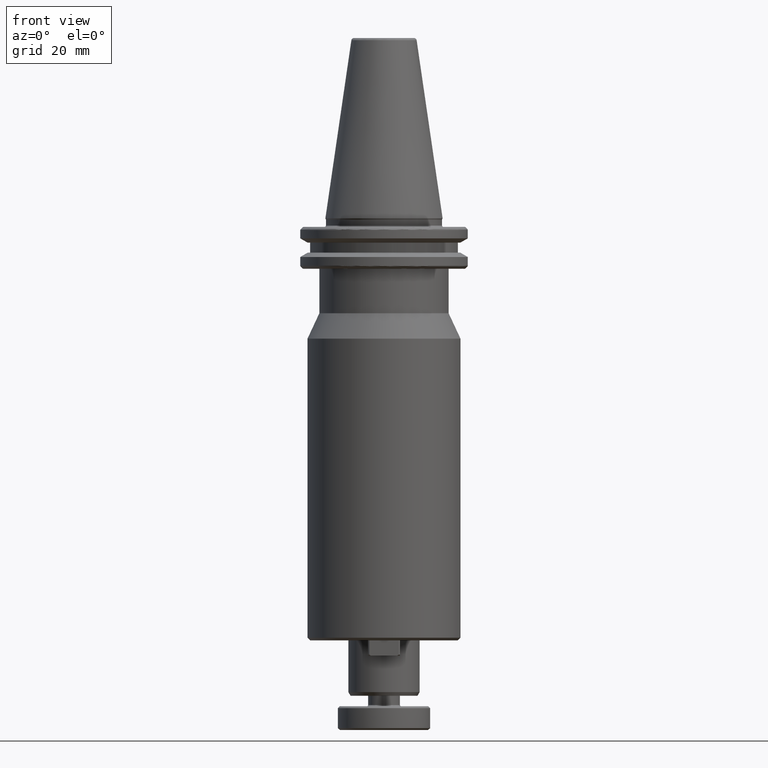
[diagram: clean part render]
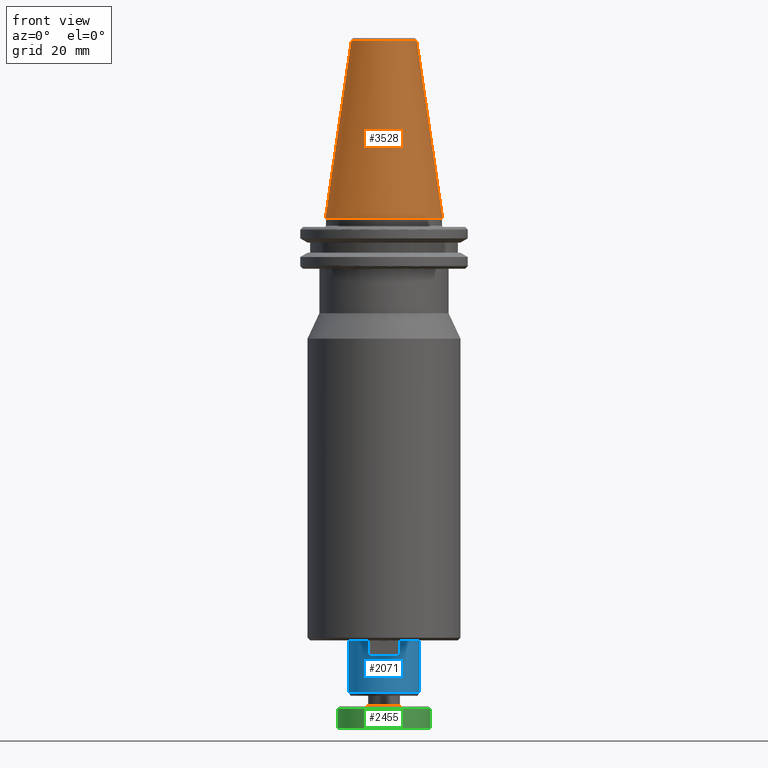
[diagram: same view with three faces highlighted in distinct colors, each labeled with its STEP entity id]
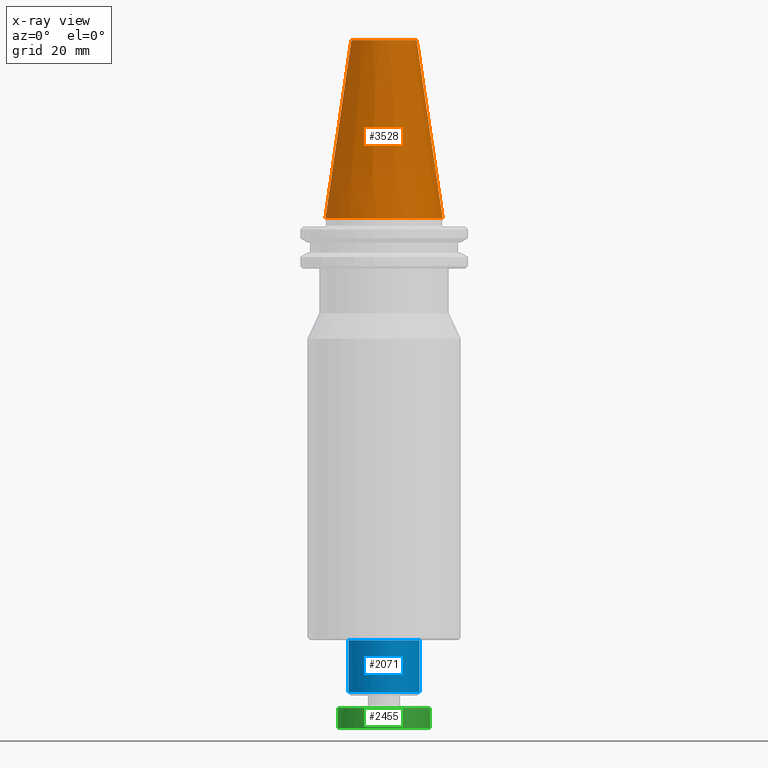
[diagram: x-ray of the same camera — body ghosted, the three highlighted faces saturated]
A machine part, front view with three faces highlighted in distinct colors.
The next image is the same camera in x-ray (body ghosted, the three faces saturated) — at least one of them is partly hidden behind the body in this view.
Their STEP definitions:

[orange] entity #3528 — the highlighted conical surface has half-angle 8.297 deg.
#16 = CARTESIAN_POINT ( 'NONE',  ( -12.37469537611110800, 0.0000000000000000000, 67.54430822726729400 ) ) ;
#131 = CARTESIAN_POINT ( 'NONE',  ( -22.22500000000000100, 0.0000000000000000000, 0.0000000000000000000 ) ) ;
#338 = VERTEX_POINT ( 'NONE', #1923 ) ;
#480 = LINE ( 'NONE', #1151, #1376 ) ;
#611 = AXIS2_PLACEMENT_3D ( 'NONE', #747, #742, #740 ) ;
#727 = EDGE_CURVE ( 'NONE', #4224, #338, #2608, .T. ) ;
#728 = ORIENTED_EDGE ( 'NONE', *, *, #850, .T. ) ;
#740 = DIRECTION ( 'NONE',  ( -1.000000000000000000, 0.0000000000000000000, 0.0000000000000000000 ) ) ;
#742 = DIRECTION ( 'NONE',  ( 0.0000000000000000000, 0.0000000000000000000, -1.000000000000000000 ) ) ;
#747 = CARTESIAN_POINT ( 'NONE',  ( 0.0000000000000000000, 0.0000000000000000000, 67.54430822726729400 ) ) ;
#801 = VECTOR ( 'NONE', #1382, 1000.000000000000000 ) ;
#850 = EDGE_CURVE ( 'NONE', #3972, #4109, #480, .T. ) ;
#887 = EDGE_CURVE ( 'NONE', #338, #4109, #2504, .T. ) ;
#900 = CARTESIAN_POINT ( 'NONE',  ( 12.37469537611110800, 2.118620309691397300E-015, 67.54430822726729400 ) ) ;
#1058 = EDGE_CURVE ( 'NONE', #4224, #3972, #3760, .T. ) ;
#1094 = DIRECTION ( 'NONE',  ( 1.000000000000000000, 0.0000000000000000000, 9.822541477422708000E-017 ) ) ;
#1101 = DIRECTION ( 'NONE',  ( -0.0000000000000000000, -0.0000000000000000000, -1.000000000000000000 ) ) ;
#1105 = CARTESIAN_POINT ( 'NONE',  ( 0.0000000000000000000, 0.0000000000000000000, 0.0000000000000000000 ) ) ;
#1137 = DIRECTION ( 'NONE',  ( -0.1443082272673070500, 0.0000000000000000000, -0.9895327864921743500 ) ) ;
#1151 = CARTESIAN_POINT ( 'NONE',  ( -22.22500000000000100, 0.0000000000000000000, 0.0000000000000000000 ) ) ;
#1376 = VECTOR ( 'NONE', #1137, 1000.000000000000000 ) ;
#1382 = DIRECTION ( 'NONE',  ( 0.1443082272673070500, 1.767266086135363700E-017, -0.9895327864921743500 ) ) ;
#1408 = CARTESIAN_POINT ( 'NONE',  ( 22.22500000000000100, 2.721777511104992800E-015, 0.0000000000000000000 ) ) ;
#1793 = DIRECTION ( 'NONE',  ( -1.000000000000000000, 0.0000000000000000000, 0.0000000000000000000 ) ) ;
#1923 = CARTESIAN_POINT ( 'NONE',  ( 22.22500000000000100, 2.721777511104992800E-015, 0.0000000000000000000 ) ) ;
#2195 = CONICAL_SURFACE ( 'NONE', #3474, 22.22500000000000100, 0.1448138465474190500 ) ;
#2307 = FACE_OUTER_BOUND ( 'NONE', #4062, .T. ) ;
#2504 = CIRCLE ( 'NONE', #2514, 22.22500000000000500 ) ;
#2514 = AXIS2_PLACEMENT_3D ( 'NONE', #1105, #1101, #1094 ) ;
#2573 = ORIENTED_EDGE ( 'NONE', *, *, #727, .F. ) ;
#2608 = LINE ( 'NONE', #1408, #801 ) ;
#2857 = ORIENTED_EDGE ( 'NONE', *, *, #1058, .T. ) ;
#2863 = DIRECTION ( 'NONE',  ( 0.0000000000000000000, 0.0000000000000000000, -1.000000000000000000 ) ) ;
#3474 = AXIS2_PLACEMENT_3D ( 'NONE', #4049, #2863, #1793 ) ;
#3528 = ADVANCED_FACE ( 'NONE', ( #2307 ), #2195, .T. ) ;
#3760 = CIRCLE ( 'NONE', #611, 12.37469537611110800 ) ;
#3972 = VERTEX_POINT ( 'NONE', #16 ) ;
#4049 = CARTESIAN_POINT ( 'NONE',  ( 0.0000000000000000000, 0.0000000000000000000, 0.0000000000000000000 ) ) ;
#4062 = EDGE_LOOP ( 'NONE', ( #2573, #2857, #728, #4190 ) ) ;
#4109 = VERTEX_POINT ( 'NONE', #131 ) ;
#4190 = ORIENTED_EDGE ( 'NONE', *, *, #887, .F. ) ;
#4224 = VERTEX_POINT ( 'NONE', #900 ) ;

[blue] entity #2071 — the highlighted cylindrical surface (edge-blend (fillet) strip) has radius 13.5 mm, axis along (0, 0, 1).
#378 = DIRECTION ( 'NONE',  ( 1.000000000000000000, 0.0000000000000000000, 0.0000000000000000000 ) ) ;
#379 = EDGE_CURVE ( 'NONE', #2777, #989, #4119, .T. ) ;
#441 = DIRECTION ( 'NONE',  ( 0.0000000000000000000, 0.0000000000000000000, 1.000000000000000000 ) ) ;
#627 = CYLINDRICAL_SURFACE ( 'NONE', #2328, 13.50000000000000000 ) ;
#684 = CARTESIAN_POINT ( 'NONE',  ( -13.50000000000000000, 1.653273178848926900E-015, -160.0000000000000000 ) ) ;
#829 = VERTEX_POINT ( 'NONE', #1154 ) ;
#856 = ORIENTED_EDGE ( 'NONE', *, *, #1459, .T. ) ;
#869 = CARTESIAN_POINT ( 'NONE',  ( 13.50000000000000000, 0.0000000000000000000, -160.0000000000000000 ) ) ;
#898 = LINE ( 'NONE', #2446, #3480 ) ;
#960 = ORIENTED_EDGE ( 'NONE', *, *, #379, .T. ) ;
#989 = VERTEX_POINT ( 'NONE', #869 ) ;
#1154 = CARTESIAN_POINT ( 'NONE',  ( -13.50000000000000000, 1.653273178848926900E-015, -179.6143593539448500 ) ) ;
#1248 = EDGE_CURVE ( 'NONE', #829, #2777, #3708, .T. ) ;
#1276 = CARTESIAN_POINT ( 'NONE',  ( 0.0000000000000000000, 0.0000000000000000000, -160.0000000000000000 ) ) ;
#1447 = CARTESIAN_POINT ( 'NONE',  ( 13.50000000000000000, 0.0000000000000000000, -179.6143593539448500 ) ) ;
#1459 = EDGE_CURVE ( 'NONE', #989, #3629, #2337, .T. ) ;
#1525 = DIRECTION ( 'NONE',  ( -0.0000000000000000000, -0.0000000000000000000, -1.000000000000000000 ) ) ;
#1690 = EDGE_CURVE ( 'NONE', #829, #3629, #898, .T. ) ;
#1705 = EDGE_LOOP ( 'NONE', ( #1838, #3516, #960, #856 ) ) ;
#1732 = CARTESIAN_POINT ( 'NONE',  ( 0.0000000000000000000, 0.0000000000000000000, -179.6143593539448500 ) ) ;
#1838 = ORIENTED_EDGE ( 'NONE', *, *, #1690, .F. ) ;
#1856 = CARTESIAN_POINT ( 'NONE',  ( 0.0000000000000000000, 0.0000000000000000000, 82.95681253582424100 ) ) ;
#2071 = ADVANCED_FACE ( 'NONE', ( #4104 ), #627, .T. ) ;
#2251 = DIRECTION ( 'NONE',  ( 0.0000000000000000000, 0.0000000000000000000, 1.000000000000000000 ) ) ;
#2328 = AXIS2_PLACEMENT_3D ( 'NONE', #1856, #3992, #378 ) ;
#2337 = CIRCLE ( 'NONE', #4229, 13.50000000000000000 ) ;
#2380 = DIRECTION ( 'NONE',  ( 1.000000000000000000, 0.0000000000000000000, 0.0000000000000000000 ) ) ;
#2446 = CARTESIAN_POINT ( 'NONE',  ( -13.50000000000000000, 1.653273178848926900E-015, 82.95681253582424100 ) ) ;
#2456 = VECTOR ( 'NONE', #2566, 1000.000000000000000 ) ;
#2566 = DIRECTION ( 'NONE',  ( 0.0000000000000000000, 0.0000000000000000000, 1.000000000000000000 ) ) ;
#2666 = CARTESIAN_POINT ( 'NONE',  ( 13.50000000000000000, 0.0000000000000000000, 82.95681253582424100 ) ) ;
#2777 = VERTEX_POINT ( 'NONE', #1447 ) ;
#3449 = DIRECTION ( 'NONE',  ( 1.000000000000000000, 0.0000000000000000000, 0.0000000000000000000 ) ) ;
#3480 = VECTOR ( 'NONE', #2251, 1000.000000000000000 ) ;
#3516 = ORIENTED_EDGE ( 'NONE', *, *, #1248, .T. ) ;
#3629 = VERTEX_POINT ( 'NONE', #684 ) ;
#3708 = CIRCLE ( 'NONE', #3946, 13.50000000000000000 ) ;
#3946 = AXIS2_PLACEMENT_3D ( 'NONE', #1732, #441, #2380 ) ;
#3992 = DIRECTION ( 'NONE',  ( 0.0000000000000000000, 0.0000000000000000000, 1.000000000000000000 ) ) ;
#4104 = FACE_OUTER_BOUND ( 'NONE', #1705, .T. ) ;
#4119 = LINE ( 'NONE', #2666, #2456 ) ;
#4229 = AXIS2_PLACEMENT_3D ( 'NONE', #1276, #1525, #3449 ) ;

[green] entity #2455 — the highlighted cylindrical surface (partial cylindrical patch) has radius 17.5 mm, axis along (0, 0, 1).
#54 = ORIENTED_EDGE ( 'NONE', *, *, #3033, .F. ) ;
#279 = EDGE_LOOP ( 'NONE', ( #2750, #497, #3806, #2084, #54 ) ) ;
#342 = CARTESIAN_POINT ( 'NONE',  ( 0.0000000000000000000, 0.0000000000000000000, -193.3000000000000700 ) ) ;
#383 = AXIS2_PLACEMENT_3D ( 'NONE', #342, #2733, #693 ) ;
#497 = ORIENTED_EDGE ( 'NONE', *, *, #3013, .T. ) ;
#551 = VECTOR ( 'NONE', #600, 1000.000000000000000 ) ;
#566 = DIRECTION ( 'NONE',  ( 0.0000000000000000000, 0.0000000000000000000, 1.000000000000000000 ) ) ;
#596 = CARTESIAN_POINT ( 'NONE',  ( 17.50000000000000000, 0.0000000000000000000, 0.0000000000000000000 ) ) ;
#600 = DIRECTION ( 'NONE',  ( 0.0000000000000000000, 0.0000000000000000000, 1.000000000000000000 ) ) ;
#693 = DIRECTION ( 'NONE',  ( 1.000000000000000000, 0.0000000000000000000, 0.0000000000000000000 ) ) ;
#707 = CARTESIAN_POINT ( 'NONE',  ( 0.0000000000000000000, 0.0000000000000000000, -185.7000000000000500 ) ) ;
#729 = CARTESIAN_POINT ( 'NONE',  ( 17.50000000000001400, 0.0000000000000000000, -185.7000000000000500 ) ) ;
#852 = AXIS2_PLACEMENT_3D ( 'NONE', #707, #3072, #1038 ) ;
#1038 = DIRECTION ( 'NONE',  ( -1.000000000000000000, 0.0000000000000000000, 0.0000000000000000000 ) ) ;
#1078 = VERTEX_POINT ( 'NONE', #729 ) ;
#1145 = FACE_OUTER_BOUND ( 'NONE', #279, .T. ) ;
#1169 = EDGE_CURVE ( 'NONE', #3047, #1078, #3255, .T. ) ;
#1337 = CARTESIAN_POINT ( 'NONE',  ( -17.50000000000000000, 2.143131898507868200E-015, 0.0000000000000000000 ) ) ;
#1358 = VERTEX_POINT ( 'NONE', #1823 ) ;
#1423 = DIRECTION ( 'NONE',  ( 0.0000000000000000000, 0.0000000000000000000, 1.000000000000000000 ) ) ;
#1458 = CYLINDRICAL_SURFACE ( 'NONE', #3587, 17.50000000000000000 ) ;
#1649 = EDGE_CURVE ( 'NONE', #1785, #1358, #2817, .T. ) ;
#1741 = CARTESIAN_POINT ( 'NONE',  ( 0.0000000000000000000, 0.0000000000000000000, 0.0000000000000000000 ) ) ;
#1785 = VERTEX_POINT ( 'NONE', #3108 ) ;
#1823 = CARTESIAN_POINT ( 'NONE',  ( -17.50000000000001400, 2.143131898507870200E-015, -185.7000000000000500 ) ) ;
#1878 = CIRCLE ( 'NONE', #852, 17.50000000000001800 ) ;
#2066 = CARTESIAN_POINT ( 'NONE',  ( 17.50000000000000000, 0.0000000000000000000, -193.3000000000000700 ) ) ;
#2084 = ORIENTED_EDGE ( 'NONE', *, *, #1169, .T. ) ;
#2367 = AXIS2_PLACEMENT_3D ( 'NONE', #2600, #566, #2940 ) ;
#2390 = DIRECTION ( 'NONE',  ( 0.0000000000000000000, 0.0000000000000000000, 1.000000000000000000 ) ) ;
#2455 = ADVANCED_FACE ( 'NONE', ( #1145 ), #1458, .T. ) ;
#2586 = VERTEX_POINT ( 'NONE', #3270 ) ;
#2600 = CARTESIAN_POINT ( 'NONE',  ( 0.0000000000000000000, 0.0000000000000000000, -193.3000000000000700 ) ) ;
#2733 = DIRECTION ( 'NONE',  ( 0.0000000000000000000, 0.0000000000000000000, 1.000000000000000000 ) ) ;
#2750 = ORIENTED_EDGE ( 'NONE', *, *, #1649, .F. ) ;
#2817 = LINE ( 'NONE', #1337, #3683 ) ;
#2940 = DIRECTION ( 'NONE',  ( 1.000000000000000000, 0.0000000000000000000, 0.0000000000000000000 ) ) ;
#3013 = EDGE_CURVE ( 'NONE', #1785, #2586, #4212, .T. ) ;
#3033 = EDGE_CURVE ( 'NONE', #1358, #1078, #1878, .T. ) ;
#3047 = VERTEX_POINT ( 'NONE', #2066 ) ;
#3072 = DIRECTION ( 'NONE',  ( -0.0000000000000000000, -0.0000000000000000000, 1.000000000000000000 ) ) ;
#3108 = CARTESIAN_POINT ( 'NONE',  ( -17.50000000000000000, 2.143131898507868200E-015, -193.3000000000000700 ) ) ;
#3255 = LINE ( 'NONE', #596, #551 ) ;
#3270 = CARTESIAN_POINT ( 'NONE',  ( 0.0000000000000000000, -17.50000000000002500, -193.3000000000000700 ) ) ;
#3587 = AXIS2_PLACEMENT_3D ( 'NONE', #1741, #1423, #3735 ) ;
#3683 = VECTOR ( 'NONE', #2390, 1000.000000000000000 ) ;
#3735 = DIRECTION ( 'NONE',  ( 1.000000000000000000, 0.0000000000000000000, 0.0000000000000000000 ) ) ;
#3806 = ORIENTED_EDGE ( 'NONE', *, *, #4236, .T. ) ;
#3963 = CIRCLE ( 'NONE', #2367, 17.50000000000000000 ) ;
#4212 = CIRCLE ( 'NONE', #383, 17.50000000000000000 ) ;
#4236 = EDGE_CURVE ( 'NONE', #2586, #3047, #3963, .T. ) ;